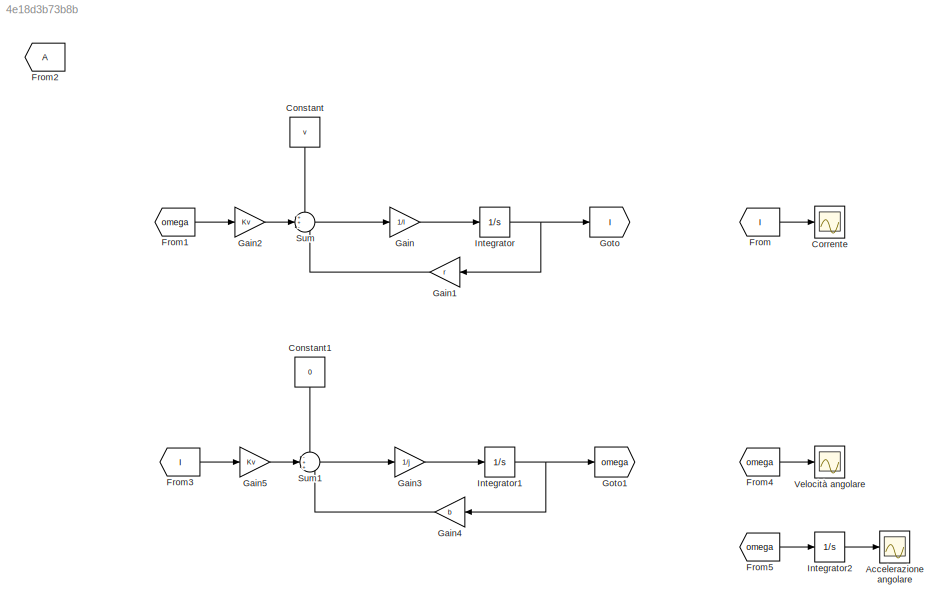
MODEL slx_4e18d3b73b8b
KIND model
CONFIG AbsTol = auto
CONFIG EnableMultiTasking = off
CONFIG FixedStep = auto
CONFIG MaxStep = auto
CONFIG MinStep = auto
CONFIG RelTol = 1e-3
CONFIG SampleTimeConstraint = Unconstrained
CONFIG SolverName = VariableStepAuto
CONFIG StartTime = 0.0
CONFIG StopTime = 10.0
BLOCK [Scope] Accelerazione angolare
  Floating = off
  NumInputPorts = 1
  ScopeSpecificationString = Simulink.scopes.TimeScopeBlockCfg('CurrentConfiguration', extmgr.ConfigurationSet(extmgr.Configuration('Core','General UI',true),extmgr.Configuration('Core','Source UI',true),extmgr.Configuration('Sources','WiredSimulink',true,'DataLoggingVariableName','ScopeData2'),extmgr.Configuration('Visuals','Time Domain',true,'SerializedDisplays',{struct('MinYLimReal','-0.00047','MaxYLimReal','0.0042','YLabe...<+1366ch>
BLOCK [Constant] Constant
  NameLocation = left
  Value = v
BLOCK [Constant] Constant1
  NameLocation = left
  Value = 0
BLOCK [Scope] Corrente
  Floating = off
  NumInputPorts = 1
  ScopeSpecificationString = Simulink.scopes.TimeScopeBlockCfg('CurrentConfiguration', extmgr.ConfigurationSet(extmgr.Configuration('Core','General UI',true),extmgr.Configuration('Core','Source UI',true),extmgr.Configuration('Sources','WiredSimulink',true),extmgr.Configuration('Visuals','Time Domain',true,'SerializedDisplays',{struct('MinYLimReal','-0.0025','MaxYLimReal','0.05092','YLabelReal','','MinYLimMag','0.00000','MaxYL...<+1376ch>
BLOCK [From] From
  GotoTag = I
BLOCK [From] From1
  GotoTag = omega
BLOCK [From] From2
BLOCK [From] From3
  GotoTag = I
BLOCK [From] From4
  GotoTag = omega
BLOCK [From] From5
  GotoTag = omega
BLOCK [Gain] Gain
  Gain = 1/l
BLOCK [Gain] Gain1
  Gain = r
  NameLocation = top
BLOCK [Gain] Gain2
  Gain = Kv
BLOCK [Gain] Gain3
  Gain = 1/j
BLOCK [Gain] Gain4
  Gain = b
  NameLocation = top
BLOCK [Gain] Gain5
  Gain = Kv
BLOCK [Goto] Goto
  GotoTag = I
BLOCK [Goto] Goto1
  GotoTag = omega
BLOCK [Integrator] Integrator
BLOCK [Integrator] Integrator1
BLOCK [Integrator] Integrator2
BLOCK [Sum] Sum
  Inputs = ++-
BLOCK [Sum] Sum1
  Inputs = -++
BLOCK [Scope] Velocità angolare
  Floating = off
  NumInputPorts = 1
  ScopeSpecificationString = Simulink.scopes.TimeScopeBlockCfg('CurrentConfiguration', extmgr.ConfigurationSet(extmgr.Configuration('Core','General UI',true),extmgr.Configuration('Core','Source UI',true),extmgr.Configuration('Sources','WiredSimulink',true,'DataLoggingVariableName','ScopeData1'),extmgr.Configuration('Visuals','Time Domain',true,'SerializedDisplays',{struct('MinYLimReal','-0.00024','MaxYLimReal','0.0022','YLabe...<+1366ch>
LINE Constant1:1 -> Sum1:1
LINE Constant:1 -> Sum:1
LINE From1:1 -> Gain2:1
LINE From3:1 -> Gain5:1
LINE From4:1 -> Velocità angolare:1
LINE From5:1 -> Integrator2:1
LINE From:1 -> Corrente:1
LINE Gain1:1 -> Sum:3
LINE Gain2:1 -> Sum:2
LINE Gain3:1 -> Integrator1:1
LINE Gain4:1 -> Sum1:3
LINE Gain5:1 -> Sum1:2
LINE Gain:1 -> Integrator:1
NET Integrator1:1 -> Gain4:1, Goto1:1
LINE Integrator2:1 -> Accelerazione angolare:1
NET Integrator:1 -> Gain1:1, Goto:1
LINE Sum1:1 -> Gain3:1
LINE Sum:1 -> Gain:1
note: NET lines group one-source signal fan-out (src -> all destinations, sorted); 1:1 wires keep LINE
